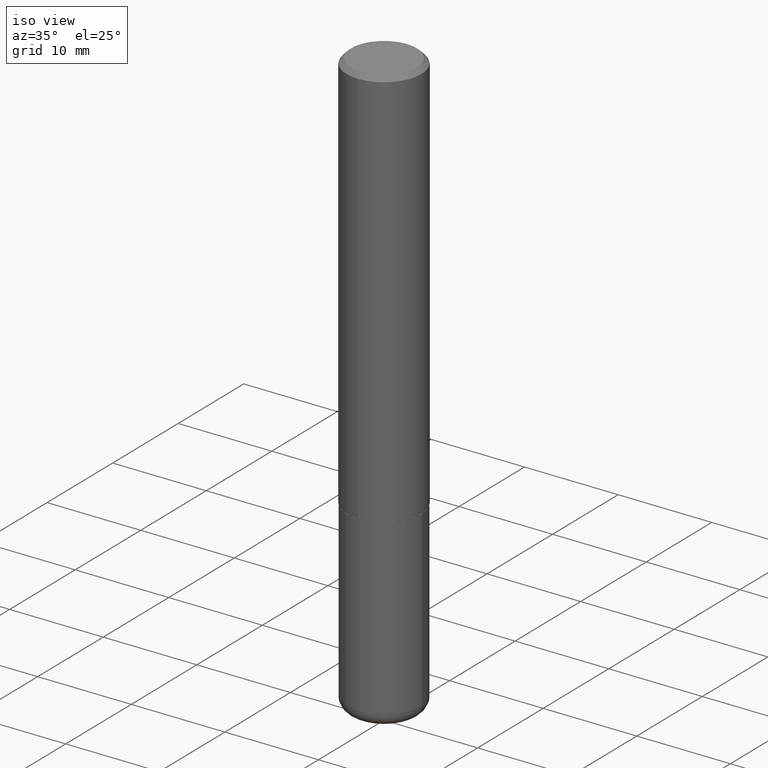
[diagram: clean part render]
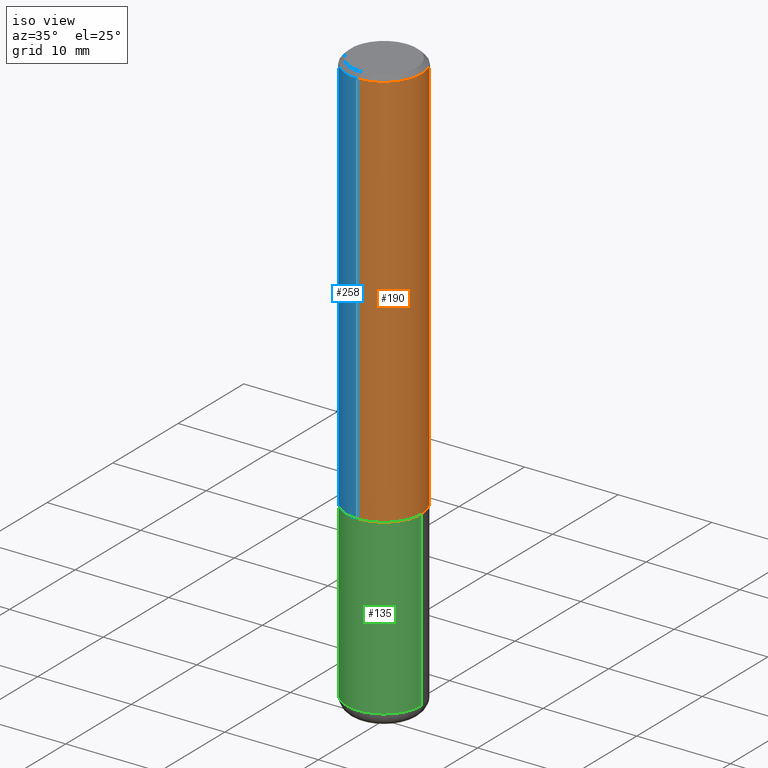
[diagram: same view with three faces highlighted in distinct colors, each labeled with its STEP entity id]
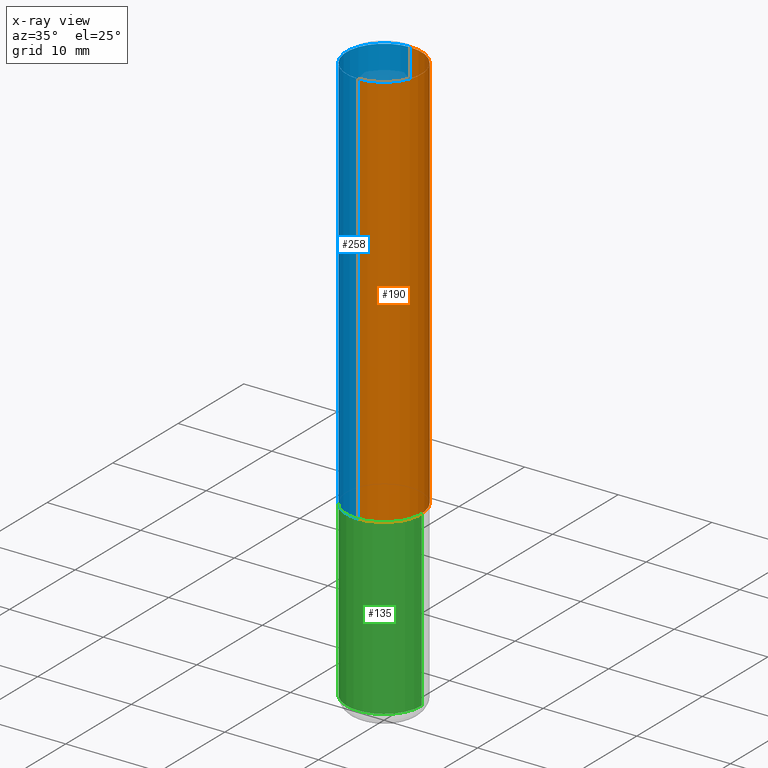
[diagram: x-ray of the same camera — body ghosted, the three highlighted faces saturated]
A machine part, iso view with three faces highlighted in distinct colors.
The next image is the same camera in x-ray (body ghosted, the three faces saturated) — at least one of them is partly hidden behind the body in this view.
Their STEP definitions:

[orange] entity #190 — the highlighted cylindrical surface (partial cylindrical patch) has radius 4.0005 mm, axis along (-0, 0, 1).
#6 = CYLINDRICAL_SURFACE ( 'NONE', #265, 0.1575000000000000844 ) ;
#8 = DIRECTION ( 'NONE',  ( -2.446155244437774389E-29, 3.490498320195729137E-15, 1.000000000000000000 ) ) ;
#32 = CARTESIAN_POINT ( 'NONE',  ( 4.892310488875556766E-31, -6.980996640391468874E-17, -0.02000000000000003511 ) ) ;
#38 = DIRECTION ( 'NONE',  ( -2.446155244437774389E-29, 3.490498320195729137E-15, 1.000000000000000000 ) ) ;
#84 = DIRECTION ( 'NONE',  ( -2.446155244437774389E-29, 3.490498320195729531E-15, 1.000000000000000000 ) ) ;
#93 = VERTEX_POINT ( 'NONE', #192 ) ;
#100 = AXIS2_PLACEMENT_3D ( 'NONE', #183, #207, #338 ) ;
#122 = CARTESIAN_POINT ( 'NONE',  ( -1.080528434649015385E-15, -0.1575000000000000289, -0.01999999999999948347 ) ) ;
#138 = AXIS2_PLACEMENT_3D ( 'NONE', #32, #8, #270 ) ;
#152 = VECTOR ( 'NONE', #241, 39.37007874015748143 ) ;
#154 = EDGE_CURVE ( 'NONE', #395, #400, #359, .T. ) ;
#163 = CARTESIAN_POINT ( 'NONE',  ( -1.099816621735546657E-15, -0.1575000000000061073, -1.691899999999999515 ) ) ;
#180 = FACE_OUTER_BOUND ( 'NONE', #213, .T. ) ;
#183 = CARTESIAN_POINT ( 'NONE',  ( 4.138650058064270947E-29, -5.905574107939154808E-15, -1.691899999999999959 ) ) ;
#184 = VERTEX_POINT ( 'NONE', #122 ) ;
#190 = ADVANCED_FACE ( 'NONE', ( #180 ), #6, .T. ) ;
#192 = CARTESIAN_POINT ( 'NONE',  ( 1.099816621735586889E-15, 0.1574999999999998901, -0.02000000000000058328 ) ) ;
#200 = ORIENTED_EDGE ( 'NONE', *, *, #154, .T. ) ;
#204 = CARTESIAN_POINT ( 'NONE',  ( 0.000000000000000000, 0.000000000000000000, 0.000000000000000000 ) ) ;
#207 = DIRECTION ( 'NONE',  ( -2.446155244437774389E-29, 3.490498320195729137E-15, 1.000000000000000000 ) ) ;
#213 = EDGE_LOOP ( 'NONE', ( #200, #269, #347, #236 ) ) ;
#214 = LINE ( 'NONE', #339, #152 ) ;
#236 = ORIENTED_EDGE ( 'NONE', *, *, #293, .F. ) ;
#237 = DIRECTION ( 'NONE',  ( -6.982962677686265922E-15, -1.000000000000000000, 3.490498320195728742E-15 ) ) ;
#241 = DIRECTION ( 'NONE',  ( -2.446155244437774389E-29, 3.490498320195729531E-15, 1.000000000000000000 ) ) ;
#253 = EDGE_CURVE ( 'NONE', #184, #93, #363, .T. ) ;
#263 = EDGE_CURVE ( 'NONE', #400, #93, #214, .T. ) ;
#265 = AXIS2_PLACEMENT_3D ( 'NONE', #204, #38, #237 ) ;
#266 = VECTOR ( 'NONE', #84, 39.37007874015748143 ) ;
#269 = ORIENTED_EDGE ( 'NONE', *, *, #263, .T. ) ;
#270 = DIRECTION ( 'NONE',  ( -6.982962677686265922E-15, -1.000000000000000000, 3.496114991891766760E-15 ) ) ;
#293 = EDGE_CURVE ( 'NONE', #395, #184, #337, .T. ) ;
#300 = CARTESIAN_POINT ( 'NONE',  ( -1.099816621735587480E-15, -0.1575000000000000844, 5.497534854308275806E-16 ) ) ;
#337 = LINE ( 'NONE', #300, #266 ) ;
#338 = DIRECTION ( 'NONE',  ( -6.982962677686265922E-15, -1.000000000000000000, 3.469013325287948955E-15 ) ) ;
#339 = CARTESIAN_POINT ( 'NONE',  ( 1.119104808822158195E-15, 0.1575000000000000844, -5.497534854308275806E-16 ) ) ;
#346 = CARTESIAN_POINT ( 'NONE',  ( 1.119104808822179889E-15, 0.1574999999999942835, -1.691900000000000626 ) ) ;
#347 = ORIENTED_EDGE ( 'NONE', *, *, #253, .F. ) ;
#359 = CIRCLE ( 'NONE', #100, 0.1575000000000001954 ) ;
#363 = CIRCLE ( 'NONE', #138, 0.1574999999999999456 ) ;
#395 = VERTEX_POINT ( 'NONE', #163 ) ;
#400 = VERTEX_POINT ( 'NONE', #346 ) ;

[blue] entity #258 — the highlighted cylindrical surface (partial cylindrical patch) has radius 4.0005 mm, axis along (-0, 0, 1).
#4 = ORIENTED_EDGE ( 'NONE', *, *, #71, .F. ) ;
#13 = AXIS2_PLACEMENT_3D ( 'NONE', #369, #396, #296 ) ;
#71 = EDGE_CURVE ( 'NONE', #93, #184, #116, .T. ) ;
#84 = DIRECTION ( 'NONE',  ( -2.446155244437774389E-29, 3.490498320195729531E-15, 1.000000000000000000 ) ) ;
#93 = VERTEX_POINT ( 'NONE', #192 ) ;
#116 = CIRCLE ( 'NONE', #401, 0.1574999999999999456 ) ;
#122 = CARTESIAN_POINT ( 'NONE',  ( -1.080528434649015385E-15, -0.1575000000000000289, -0.01999999999999948347 ) ) ;
#123 = DIRECTION ( 'NONE',  ( -2.446155244437774389E-29, 3.490498320195729137E-15, 1.000000000000000000 ) ) ;
#136 = FACE_OUTER_BOUND ( 'NONE', #235, .T. ) ;
#152 = VECTOR ( 'NONE', #241, 39.37007874015748143 ) ;
#163 = CARTESIAN_POINT ( 'NONE',  ( -1.099816621735546657E-15, -0.1575000000000061073, -1.691899999999999515 ) ) ;
#184 = VERTEX_POINT ( 'NONE', #122 ) ;
#188 = CIRCLE ( 'NONE', #13, 0.1575000000000001954 ) ;
#192 = CARTESIAN_POINT ( 'NONE',  ( 1.099816621735586889E-15, 0.1574999999999998901, -0.02000000000000058328 ) ) ;
#197 = DIRECTION ( 'NONE',  ( -6.982962677686265922E-15, -1.000000000000000000, 3.496114991891766760E-15 ) ) ;
#214 = LINE ( 'NONE', #339, #152 ) ;
#223 = CARTESIAN_POINT ( 'NONE',  ( 4.892310488875556766E-31, -6.980996640391468874E-17, -0.02000000000000003511 ) ) ;
#235 = EDGE_LOOP ( 'NONE', ( #392, #370, #246, #4 ) ) ;
#241 = DIRECTION ( 'NONE',  ( -2.446155244437774389E-29, 3.490498320195729531E-15, 1.000000000000000000 ) ) ;
#244 = DIRECTION ( 'NONE',  ( -2.446155244437774389E-29, 3.490498320195729137E-15, 1.000000000000000000 ) ) ;
#246 = ORIENTED_EDGE ( 'NONE', *, *, #293, .T. ) ;
#258 = ADVANCED_FACE ( 'NONE', ( #136 ), #366, .T. ) ;
#263 = EDGE_CURVE ( 'NONE', #400, #93, #214, .T. ) ;
#266 = VECTOR ( 'NONE', #84, 39.37007874015748143 ) ;
#293 = EDGE_CURVE ( 'NONE', #395, #184, #337, .T. ) ;
#296 = DIRECTION ( 'NONE',  ( -6.982962677686265922E-15, -1.000000000000000000, 3.469013325287948955E-15 ) ) ;
#300 = CARTESIAN_POINT ( 'NONE',  ( -1.099816621735587480E-15, -0.1575000000000000844, 5.497534854308275806E-16 ) ) ;
#304 = EDGE_CURVE ( 'NONE', #400, #395, #188, .T. ) ;
#307 = CARTESIAN_POINT ( 'NONE',  ( 0.000000000000000000, 0.000000000000000000, 0.000000000000000000 ) ) ;
#311 = AXIS2_PLACEMENT_3D ( 'NONE', #307, #244, #389 ) ;
#337 = LINE ( 'NONE', #300, #266 ) ;
#339 = CARTESIAN_POINT ( 'NONE',  ( 1.119104808822158195E-15, 0.1575000000000000844, -5.497534854308275806E-16 ) ) ;
#346 = CARTESIAN_POINT ( 'NONE',  ( 1.119104808822179889E-15, 0.1574999999999942835, -1.691900000000000626 ) ) ;
#366 = CYLINDRICAL_SURFACE ( 'NONE', #311, 0.1575000000000000844 ) ;
#369 = CARTESIAN_POINT ( 'NONE',  ( 4.138650058064270947E-29, -5.905574107939154808E-15, -1.691899999999999959 ) ) ;
#370 = ORIENTED_EDGE ( 'NONE', *, *, #304, .T. ) ;
#389 = DIRECTION ( 'NONE',  ( -6.982962677686265922E-15, -1.000000000000000000, 3.490498320195728742E-15 ) ) ;
#392 = ORIENTED_EDGE ( 'NONE', *, *, #263, .F. ) ;
#395 = VERTEX_POINT ( 'NONE', #163 ) ;
#396 = DIRECTION ( 'NONE',  ( -2.446155244437774389E-29, 3.490498320195729137E-15, 1.000000000000000000 ) ) ;
#400 = VERTEX_POINT ( 'NONE', #346 ) ;
#401 = AXIS2_PLACEMENT_3D ( 'NONE', #223, #123, #197 ) ;

[green] entity #135 — the highlighted cylindrical surface (partial cylindrical patch) has radius 4.0005 mm, axis along (-0, 0, 1).
#3 = AXIS2_PLACEMENT_3D ( 'NONE', #408, #248, #220 ) ;
#7 = EDGE_LOOP ( 'NONE', ( #115, #165, #49, #374 ) ) ;
#12 = CYLINDRICAL_SURFACE ( 'NONE', #41, 0.1575000000000000011 ) ;
#22 = AXIS2_PLACEMENT_3D ( 'NONE', #91, #411, #129 ) ;
#27 = EDGE_CURVE ( 'NONE', #239, #74, #159, .T. ) ;
#40 = DIRECTION ( 'NONE',  ( 1.000000000000000000, -6.982962677686265922E-15, 4.876176775795935232E-29 ) ) ;
#41 = AXIS2_PLACEMENT_3D ( 'NONE', #367, #313, #40 ) ;
#45 = CARTESIAN_POINT ( 'NONE',  ( -0.1574999999999999456, -7.334469808784867333E-15, -2.421200000000000241 ) ) ;
#49 = ORIENTED_EDGE ( 'NONE', *, *, #27, .T. ) ;
#73 = EDGE_CURVE ( 'NONE', #107, #239, #350, .T. ) ;
#74 = VERTEX_POINT ( 'NONE', #379 ) ;
#81 = VERTEX_POINT ( 'NONE', #216 ) ;
#91 = CARTESIAN_POINT ( 'NONE',  ( 4.139934141990818918E-29, -5.910728758527562653E-15, -1.692900000000000293 ) ) ;
#106 = EDGE_CURVE ( 'NONE', #81, #74, #390, .T. ) ;
#107 = VERTEX_POINT ( 'NONE', #45 ) ;
#111 = FACE_OUTER_BOUND ( 'NONE', #7, .T. ) ;
#115 = ORIENTED_EDGE ( 'NONE', *, *, #199, .F. ) ;
#129 = DIRECTION ( 'NONE',  ( 1.000000000000000000, -6.982962677686268288E-15, 0.000000000000000000 ) ) ;
#135 = ADVANCED_FACE ( 'NONE', ( #111 ), #12, .T. ) ;
#144 = LINE ( 'NONE', #242, #176 ) ;
#147 = DIRECTION ( 'NONE',  ( -2.445468806185136877E-29, 3.491481338843145188E-15, 1.000000000000000000 ) ) ;
#159 = LINE ( 'NONE', #403, #342 ) ;
#165 = ORIENTED_EDGE ( 'NONE', *, *, #73, .T. ) ;
#176 = VECTOR ( 'NONE', #147, 39.37007874015748143 ) ;
#199 = EDGE_CURVE ( 'NONE', #107, #81, #144, .T. ) ;
#216 = CARTESIAN_POINT ( 'NONE',  ( -0.1575000000000000011, -6.063046879245136191E-15, -1.692900000000000293 ) ) ;
#220 = DIRECTION ( 'NONE',  ( 1.000000000000000000, -6.982962677686268288E-15, 0.000000000000000000 ) ) ;
#239 = VERTEX_POINT ( 'NONE', #321 ) ;
#242 = CARTESIAN_POINT ( 'NONE',  ( -0.1575000000000000011, 1.119104808822157801E-15, -7.747322767151475583E-30 ) ) ;
#248 = DIRECTION ( 'NONE',  ( -2.445468806185136597E-29, 3.491481338843145583E-15, 1.000000000000000000 ) ) ;
#251 = DIRECTION ( 'NONE',  ( -2.445468806185136877E-29, 3.491481338843145188E-15, 1.000000000000000000 ) ) ;
#313 = DIRECTION ( 'NONE',  ( -2.445468806185136597E-29, 3.491481338843145583E-15, 1.000000000000000000 ) ) ;
#321 = CARTESIAN_POINT ( 'NONE',  ( 0.1574999999999999456, -9.553391239342613205E-15, -2.421200000000000241 ) ) ;
#342 = VECTOR ( 'NONE', #251, 39.37007874015748143 ) ;
#350 = CIRCLE ( 'NONE', #3, 0.1575000000000000011 ) ;
#367 = CARTESIAN_POINT ( 'NONE',  ( 0.000000000000000000, 0.000000000000000000, 0.000000000000000000 ) ) ;
#374 = ORIENTED_EDGE ( 'NONE', *, *, #106, .F. ) ;
#379 = CARTESIAN_POINT ( 'NONE',  ( 0.1575000000000000011, -7.010545380263150133E-15, -1.692900000000000293 ) ) ;
#390 = CIRCLE ( 'NONE', #22, 0.1575000000000000011 ) ;
#403 = CARTESIAN_POINT ( 'NONE',  ( 0.1575000000000000011, -1.099816621735586889E-15, 7.679978421878598033E-30 ) ) ;
#408 = CARTESIAN_POINT ( 'NONE',  ( 5.920969073535453422E-29, -8.453574617607024936E-15, -2.421200000000000241 ) ) ;
#411 = DIRECTION ( 'NONE',  ( -2.445468806185136597E-29, 3.491481338843145583E-15, 1.000000000000000000 ) ) ;